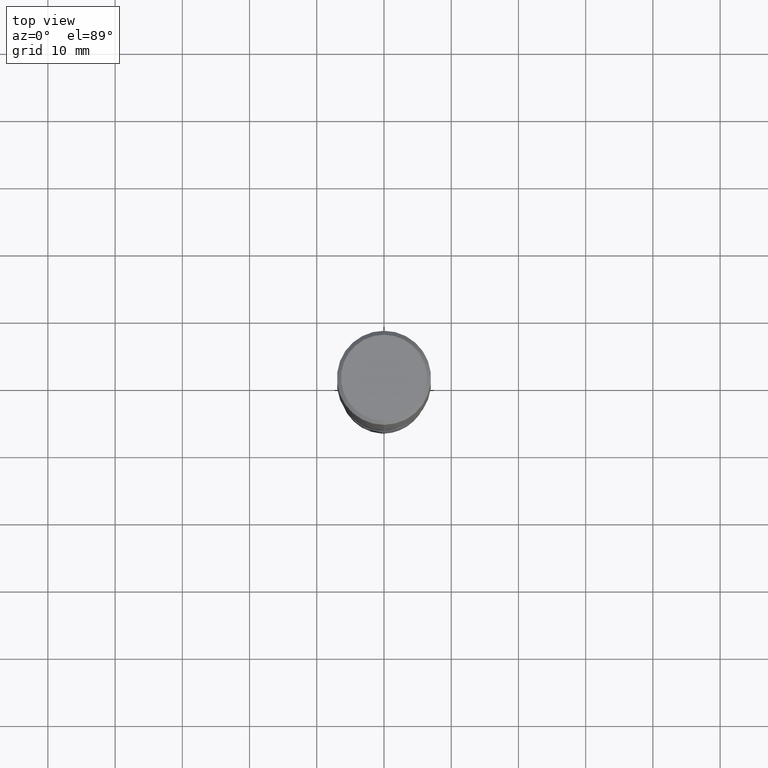
[diagram: clean part render]
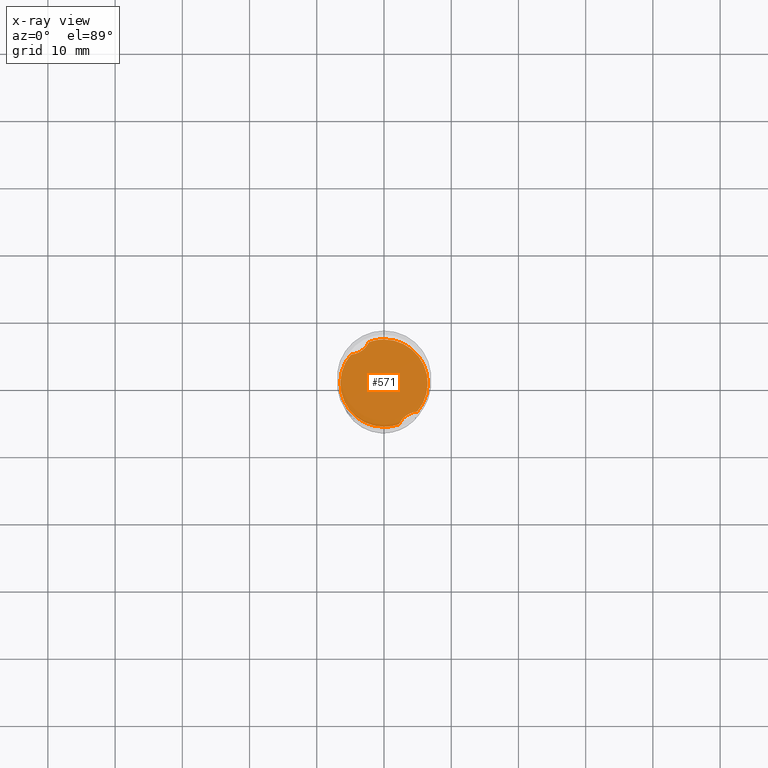
[diagram: x-ray — body ghosted, one internal face saturated and labeled with its STEP entity id]
A machine part, top view, then the same camera in x-ray: the body is ghosted and one INTERNAL B-rep face — a face not visible from any outside direction — is saturated and labeled: STEP entity #571.
In plain terms, the highlighted planar face has unit normal (-0, 0, 1).
Its self-contained STEP definition (entity closure, byte-faithful):
#345=EDGE_CURVE('',#467,#589,#844,.T.);
#381=VERTEX_POINT('',#882);
#461=EDGE_CURVE('',#555,#381,#968,.T.);
#467=VERTEX_POINT('',#974);
#531=VERTEX_POINT('',#1043);
#555=VERTEX_POINT('',#1069);
#571=ADVANCED_FACE('',(#1087),#1088,.T.);
#589=VERTEX_POINT('',#1108);
#677=EDGE_CURVE('',#589,#531,#1205,.T.);
#705=VERTEX_POINT('',#1237);
#729=EDGE_CURVE('',#705,#531,#1263,.T.);
#731=EDGE_CURVE('',#467,#381,#1265,.T.);
#739=EDGE_CURVE('',#705,#555,#1274,.T.);
#844=CIRCLE('',#1571,6.4999);
#882=CARTESIAN_POINT('',(4.92586433088961,-4.24082074646753,-47.0));
#968=CIRCLE('',#2469,6.4999);
#974=CARTESIAN_POINT('',(2.21281516099999,-6.11164045680442,-47.0));
#1043=CARTESIAN_POINT('',(-4.92586433088962,4.24082074646752,-47.0));
#1069=CARTESIAN_POINT('',(-7.95802077010619E-016,6.4999,-47.0));
#1087=FACE_OUTER_BOUND('',#3870,.T.);
#1088=PLANE('',#3871);
#1108=CARTESIAN_POINT('',(7.95802077500254E-016,-6.4999,-47.0));
#1205=CIRCLE('',#4400,6.4999);
#1237=CARTESIAN_POINT('',(-2.21281516099998,6.11164045680443,-47.0));
#1263=B_SPLINE_CURVE_WITH_KNOTS('',3,(#5143,#5144,#5145,#5146,#5147,#5148,#5149,#5150,#5151,#5152),.UNSPECIFIED.,.F.,.F.,(4,2,2,2,4),(0.0,1.40914596559986,2.69867681238981,4.00132224511648,5.60687501498401),.UNSPECIFIED.);
#1265=B_SPLINE_CURVE_WITH_KNOTS('',3,(#5155,#5156,#5157,#5158,#5159,#5160,#5161,#5162,#5163,#5164),.UNSPECIFIED.,.F.,.F.,(4,2,2,2,4),(0.0,1.40914596559988,2.6986768123899,4.00132224511673,5.60687501498451),.UNSPECIFIED.);
#1274=CIRCLE('',#5201,6.4999);
#1571=AXIS2_PLACEMENT_3D('',#5295,#5296,#5297);
#2469=AXIS2_PLACEMENT_3D('',#5410,#5411,#5412);
#3870=EDGE_LOOP('',(#5520,#5521,#5522,#5523,#5524,#5525));
#3871=AXIS2_PLACEMENT_3D('',#5526,#5527,#5528);
#4400=AXIS2_PLACEMENT_3D('',#5688,#5689,#5690);
#5143=CARTESIAN_POINT('',(-2.03354623566575,6.5499,-47.0));
#5144=CARTESIAN_POINT('',(-2.18395435838325,6.10491698884468,-47.0));
#5145=CARTESIAN_POINT('',(-2.41259928772629,5.69388302822053,-46.9999999999826));
#5146=CARTESIAN_POINT('',(-3.00515467709701,5.01964145526277,-46.9999999999826));
#5147=CARTESIAN_POINT('',(-3.34572339021199,4.75881843990498,-47.000000000001));
#5148=CARTESIAN_POINT('',(-4.11986424385112,4.38001383862843,-47.000000000001));
#5149=CARTESIAN_POINT('',(-4.54050960804132,4.27018694563109,-47.0000000000001));
#5150=CARTESIAN_POINT('',(-5.50571529546682,4.19586711113824,-47.0000000000001));
#5151=CARTESIAN_POINT('',(-6.04081633581658,4.2718403237176,-47.0));
#5152=CARTESIAN_POINT('',(-6.5499,4.43989030672182,-47.0));
#5155=CARTESIAN_POINT('',(2.03354623566576,-6.5499,-47.0));
#5156=CARTESIAN_POINT('',(2.18395435838326,-6.10491698884467,-47.0));
#5157=CARTESIAN_POINT('',(2.41259928772631,-5.69388302822053,-46.9999999999826));
#5158=CARTESIAN_POINT('',(3.00515467709704,-5.01964145526277,-46.9999999999826));
#5159=CARTESIAN_POINT('',(3.34572339021201,-4.75881843990499,-47.000000000001));
#5160=CARTESIAN_POINT('',(4.11986424385116,-4.38001383862844,-47.000000000001));
#5161=CARTESIAN_POINT('',(4.54050960804138,-4.27018694563111,-47.0000000000001));
#5162=CARTESIAN_POINT('',(5.50571529546682,-4.19586711113826,-47.0000000000001));
#5163=CARTESIAN_POINT('',(6.04081633581654,-4.2718403237176,-47.0));
#5164=CARTESIAN_POINT('',(6.5499,-4.43989030672183,-47.0));
#5201=AXIS2_PLACEMENT_3D('',#5778,#5779,#5780);
#5295=CARTESIAN_POINT('',(0.0,0.0,-47.0));
#5296=DIRECTION('',(0.0,0.0,-1.0));
#5297=DIRECTION('',(0.0,1.0,0.0));
#5410=CARTESIAN_POINT('',(0.0,0.0,-47.0));
#5411=DIRECTION('',(0.0,0.0,-1.0));
#5412=DIRECTION('',(0.0,1.0,0.0));
#5520=ORIENTED_EDGE('',*,*,#731,.T.);
#5521=ORIENTED_EDGE('',*,*,#461,.F.);
#5522=ORIENTED_EDGE('',*,*,#739,.F.);
#5523=ORIENTED_EDGE('',*,*,#729,.T.);
#5524=ORIENTED_EDGE('',*,*,#677,.F.);
#5525=ORIENTED_EDGE('',*,*,#345,.F.);
#5526=CARTESIAN_POINT('',(0.0,3.24995,-47.0));
#5527=DIRECTION('',(-0.0,0.0,1.0));
#5528=DIRECTION('',(0.0,-1.0,0.0));
#5688=CARTESIAN_POINT('',(0.0,0.0,-47.0));
#5689=DIRECTION('',(0.0,0.0,-1.0));
#5690=DIRECTION('',(0.0,1.0,0.0));
#5778=CARTESIAN_POINT('',(0.0,0.0,-47.0));
#5779=DIRECTION('',(0.0,0.0,-1.0));
#5780=DIRECTION('',(0.0,1.0,0.0));